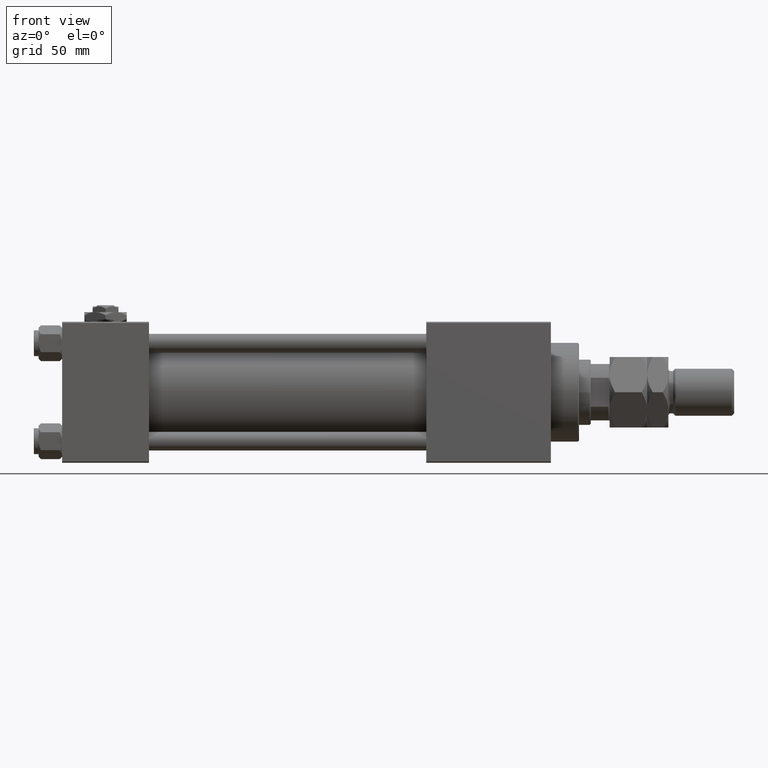
[diagram: clean part render]
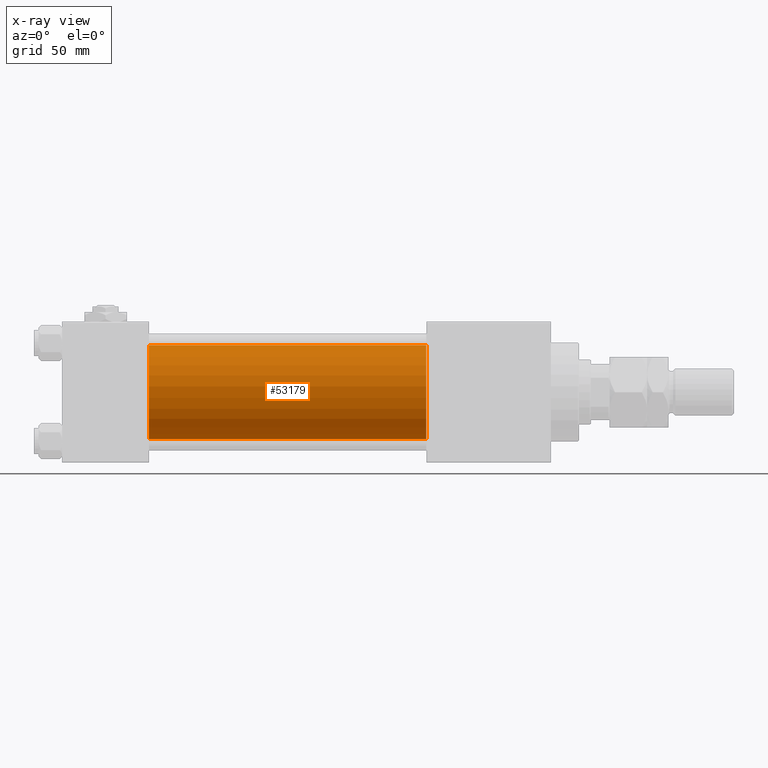
[diagram: x-ray — body ghosted, one internal face saturated and labeled with its STEP entity id]
A machine part, front view, then the same camera in x-ray: the body is ghosted and one INTERNAL B-rep face — a face not visible from any outside direction — is saturated and labeled: STEP entity #53179.
In plain terms, the highlighted cylindrical surface (partial cylindrical patch) has radius 20 mm, axis along (-1, -0, -0).
Its self-contained STEP definition (entity closure, byte-faithful):
#146 = DIRECTION ( 'NONE',  ( 0.000000000000000000, 0.000000000000000000, 1.000000000000000000 ) ) ;
#250 = CARTESIAN_POINT ( 'NONE',  ( 155.0000000000000000, -2.602085213965210642E-15, 20.00000000000000000 ) ) ;
#381 = EDGE_CURVE ( 'NONE', #13324, #4777, #26499, .T. ) ;
#730 = ORIENTED_EDGE ( 'NONE', *, *, #12089, .T. ) ;
#1949 = CARTESIAN_POINT ( 'NONE',  ( 155.0000000000000000, -2.602085213965210642E-15, 0.000000000000000000 ) ) ;
#4777 = VERTEX_POINT ( 'NONE', #35364 ) ;
#5875 = CIRCLE ( 'NONE', #22373, 20.00000000000000000 ) ;
#6295 = DIRECTION ( 'NONE',  ( 1.000000000000000000, 0.000000000000000000, 0.000000000000000000 ) ) ;
#6528 = CARTESIAN_POINT ( 'NONE',  ( 37.00000000000000000, -1.527916156705042519E-16, -20.00000000000000000 ) ) ;
#7716 = EDGE_CURVE ( 'NONE', #44810, #31837, #5875, .T. ) ;
#8276 = FACE_OUTER_BOUND ( 'NONE', #30845, .T. ) ;
#10662 = CARTESIAN_POINT ( 'NONE',  ( 37.00000000000000000, -2.602085213965210642E-15, 20.00000000000000000 ) ) ;
#12089 = EDGE_CURVE ( 'NONE', #4777, #31837, #18121, .T. ) ;
#13324 = VERTEX_POINT ( 'NONE', #250 ) ;
#14662 = ORIENTED_EDGE ( 'NONE', *, *, #7716, .F. ) ;
#15203 = VECTOR ( 'NONE', #22230, 1000.000000000000000 ) ;
#15469 = DIRECTION ( 'NONE',  ( 1.000000000000000000, 0.000000000000000000, 0.000000000000000000 ) ) ;
#16443 = ORIENTED_EDGE ( 'NONE', *, *, #381, .T. ) ;
#18121 = LINE ( 'NONE', #34630, #25963 ) ;
#18294 = AXIS2_PLACEMENT_3D ( 'NONE', #24802, #41322, #146 ) ;
#18652 = DIRECTION ( 'NONE',  ( -1.000000000000000000, -0.000000000000000000, -0.000000000000000000 ) ) ;
#22230 = DIRECTION ( 'NONE',  ( -1.000000000000000000, -0.000000000000000000, -0.000000000000000000 ) ) ;
#22373 = AXIS2_PLACEMENT_3D ( 'NONE', #22564, #6295, #47996 ) ;
#22564 = CARTESIAN_POINT ( 'NONE',  ( 37.00000000000000000, -2.602085213965210642E-15, 0.000000000000000000 ) ) ;
#24802 = CARTESIAN_POINT ( 'NONE',  ( 155.0000000000000000, -2.602085213965210642E-15, 0.000000000000000000 ) ) ;
#25963 = VECTOR ( 'NONE', #18652, 1000.000000000000000 ) ;
#26499 = CIRCLE ( 'NONE', #31731, 20.00000000000000000 ) ;
#27113 = EDGE_CURVE ( 'NONE', #13324, #44810, #35750, .T. ) ;
#30845 = EDGE_LOOP ( 'NONE', ( #16443, #730, #14662, #47542 ) ) ;
#31731 = AXIS2_PLACEMENT_3D ( 'NONE', #1949, #15469, #31997 ) ;
#31837 = VERTEX_POINT ( 'NONE', #6528 ) ;
#31997 = DIRECTION ( 'NONE',  ( 0.000000000000000000, 0.000000000000000000, -1.000000000000000000 ) ) ;
#33453 = CYLINDRICAL_SURFACE ( 'NONE', #18294, 20.00000000000000000 ) ;
#34630 = CARTESIAN_POINT ( 'NONE',  ( 155.0000000000000000, -1.527916156705042519E-16, -20.00000000000000000 ) ) ;
#35364 = CARTESIAN_POINT ( 'NONE',  ( 155.0000000000000000, -1.527916156705042519E-16, -20.00000000000000000 ) ) ;
#35750 = LINE ( 'NONE', #52003, #15203 ) ;
#41322 = DIRECTION ( 'NONE',  ( -1.000000000000000000, -0.000000000000000000, -0.000000000000000000 ) ) ;
#44810 = VERTEX_POINT ( 'NONE', #10662 ) ;
#47542 = ORIENTED_EDGE ( 'NONE', *, *, #27113, .F. ) ;
#47996 = DIRECTION ( 'NONE',  ( 0.000000000000000000, 0.000000000000000000, -1.000000000000000000 ) ) ;
#52003 = CARTESIAN_POINT ( 'NONE',  ( 155.0000000000000000, -2.602085213965210642E-15, 20.00000000000000000 ) ) ;
#53179 = ADVANCED_FACE ( 'NONE', ( #8276 ), #33453, .F. ) ;